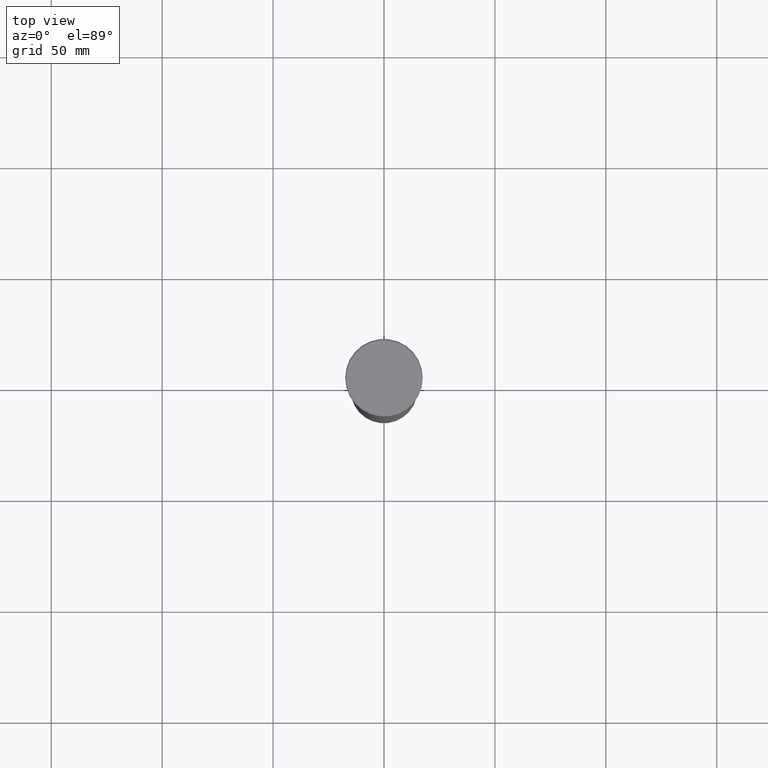
[diagram: clean part render]
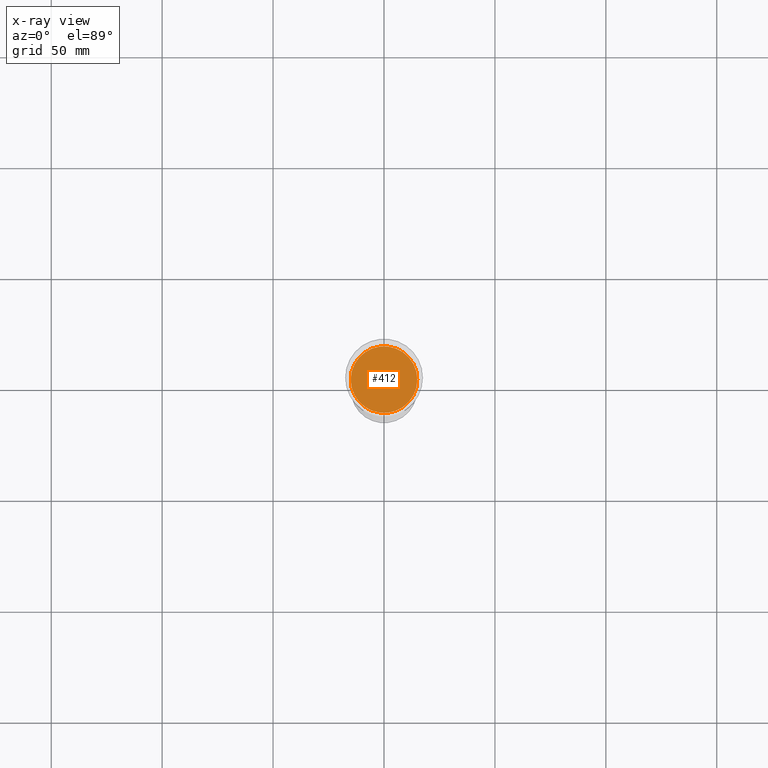
[diagram: x-ray — body ghosted, one internal face saturated and labeled with its STEP entity id]
A machine part, top view, then the same camera in x-ray: the body is ghosted and one INTERNAL B-rep face — a face not visible from any outside direction — is saturated and labeled: STEP entity #412.
In plain terms, the highlighted planar face has unit normal (0, 0, -1).
Its self-contained STEP definition (entity closure, byte-faithful):
#74 = CARTESIAN_POINT ( 'NONE',  ( 0.000000000000000000, 0.000000000000000000, -52.00000000000000000 ) ) ;
#89 = ORIENTED_EDGE ( 'NONE', *, *, #150, .T. ) ;
#91 = CARTESIAN_POINT ( 'NONE',  ( 0.000000000000000000, 0.000000000000000000, -52.00000000000000000 ) ) ;
#142 = CIRCLE ( 'NONE', #387, 15.00000000000000000 ) ;
#150 = EDGE_CURVE ( 'NONE', #1075, #341, #142, .T. ) ;
#176 = ORIENTED_EDGE ( 'NONE', *, *, #500, .T. ) ;
#210 = CARTESIAN_POINT ( 'NONE',  ( 0.000000000000000000, 0.000000000000000000, -52.00000000000000000 ) ) ;
#221 = DIRECTION ( 'NONE',  ( -1.000000000000000000, 0.000000000000000000, -0.000000000000000000 ) ) ;
#256 = DIRECTION ( 'NONE',  ( 0.000000000000000000, 0.000000000000000000, -1.000000000000000000 ) ) ;
#298 = FACE_OUTER_BOUND ( 'NONE', #594, .T. ) ;
#332 = AXIS2_PLACEMENT_3D ( 'NONE', #74, #256, #418 ) ;
#341 = VERTEX_POINT ( 'NONE', #858 ) ;
#387 = AXIS2_PLACEMENT_3D ( 'NONE', #91, #452, #434 ) ;
#412 = ADVANCED_FACE ( 'NONE', ( #298 ), #826, .T. ) ;
#418 = DIRECTION ( 'NONE',  ( -1.000000000000000000, 0.000000000000000000, 0.000000000000000000 ) ) ;
#434 = DIRECTION ( 'NONE',  ( -1.000000000000000000, 0.000000000000000000, 0.000000000000000000 ) ) ;
#452 = DIRECTION ( 'NONE',  ( 0.000000000000000000, 0.000000000000000000, -1.000000000000000000 ) ) ;
#500 = EDGE_CURVE ( 'NONE', #341, #1075, #507, .T. ) ;
#507 = CIRCLE ( 'NONE', #332, 15.00000000000000000 ) ;
#569 = DIRECTION ( 'NONE',  ( 0.000000000000000000, 0.000000000000000000, -1.000000000000000000 ) ) ;
#587 = AXIS2_PLACEMENT_3D ( 'NONE', #210, #569, #221 ) ;
#594 = EDGE_LOOP ( 'NONE', ( #89, #176 ) ) ;
#757 = CARTESIAN_POINT ( 'NONE',  ( 15.00000000000000000, 0.000000000000000000, -52.00000000000000000 ) ) ;
#826 = PLANE ( 'NONE',  #587 ) ;
#858 = CARTESIAN_POINT ( 'NONE',  ( -15.00000000000000000, 1.836970198721029589E-15, -52.00000000000000000 ) ) ;
#1075 = VERTEX_POINT ( 'NONE', #757 ) ;